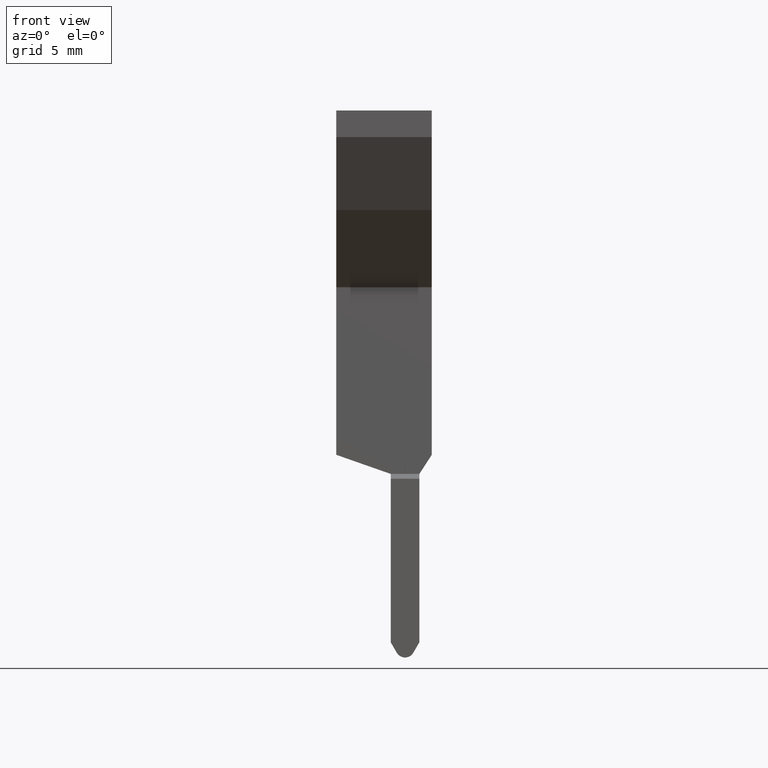
[diagram: clean part render]
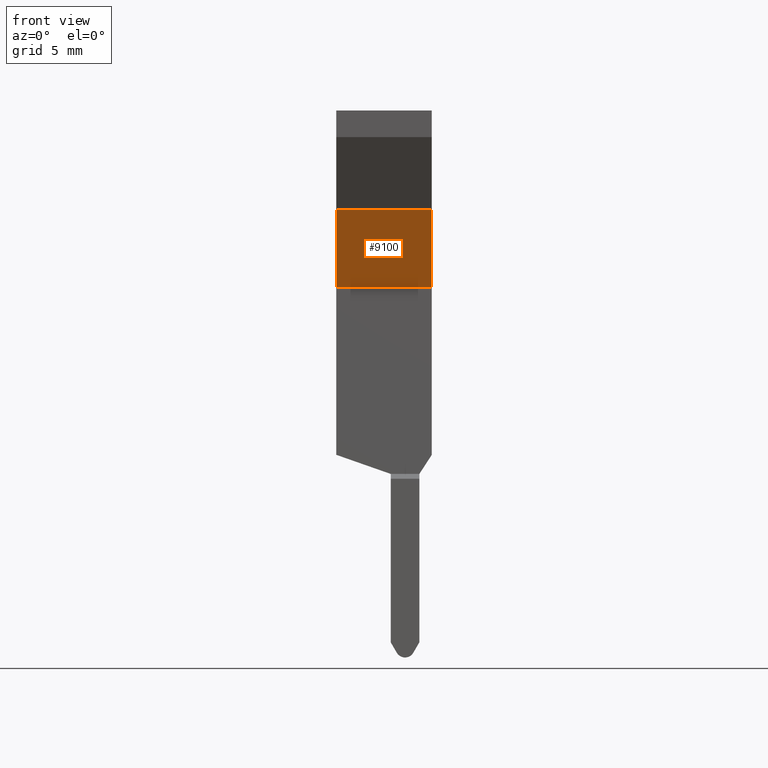
[diagram: same view with one face highlighted and labeled with its STEP entity id]
A machine part, front view. The second image highlights one B-rep face of the part: STEP entity #9100.
In plain terms, the highlighted planar face has unit normal (-0, -0.5, -0.866).
Its self-contained STEP definition (entity closure, byte-faithful):
#1640=CARTESIAN_POINT('',(27.9025,11.65,0.));
#1650=VERTEX_POINT('',#1640);
#1680=CARTESIAN_POINT('',(0.,27.7595158860636,0.));
#1690=DIRECTION('',(-0.866025403784438,0.500000000000001,0.));
#1700=VECTOR('',#1690,1.);
#1710=LINE('',#1680,#1700);
#1720=CARTESIAN_POINT('',(34.9025,7.6085481156726,0.));
#1730=VERTEX_POINT('',#1720);
#1740=EDGE_CURVE('',#1730,#1650,#1710,.T.);
#4590=CARTESIAN_POINT('',(34.9025,7.6085481156726,5.));
#4600=VERTEX_POINT('',#4590);
#4630=CARTESIAN_POINT('',(0.,27.7595158860636,5.));
#4640=DIRECTION('',(-0.866025403784438,0.500000000000001,0.));
#4650=VECTOR('',#4640,1.);
#4660=LINE('',#4630,#4650);
#4670=CARTESIAN_POINT('',(27.9025,11.65,5.));
#4680=VERTEX_POINT('',#4670);
#4690=EDGE_CURVE('',#4600,#4680,#4660,.T.);
#8890=CARTESIAN_POINT('',(34.4025,7.89722325026743,6.12323399573677E-17)
);
#8900=DIRECTION('',(-0.500000000000001,-0.866025403784438,-0.));
#8910=DIRECTION('',(-0.866025403784438,0.500000000000001,0.));
#8920=AXIS2_PLACEMENT_3D('',#8890,#8900,#8910);
#8930=PLANE('',#8920);
#8940=CARTESIAN_POINT('',(27.9025,11.65,0.));
#8950=DIRECTION('',(0.,0.,-1.));
#8960=VECTOR('',#8950,1.);
#8970=LINE('',#8940,#8960);
#8980=EDGE_CURVE('',#4680,#1650,#8970,.T.);
#8990=ORIENTED_EDGE('',*,*,#8980,.T.);
#9000=ORIENTED_EDGE('',*,*,#4690,.T.);
#9010=CARTESIAN_POINT('',(34.9025,7.60854811567262,0.));
#9020=DIRECTION('',(0.,0.,-1.));
#9030=VECTOR('',#9020,1.);
#9040=LINE('',#9010,#9030);
#9050=EDGE_CURVE('',#4600,#1730,#9040,.T.);
#9060=ORIENTED_EDGE('',*,*,#9050,.F.);
#9070=ORIENTED_EDGE('',*,*,#1740,.F.);
#9080=EDGE_LOOP('',(#9070,#9060,#9000,#8990));
#9090=FACE_OUTER_BOUND('',#9080,.T.);
#9100=ADVANCED_FACE('',(#9090),#8930,.T.);